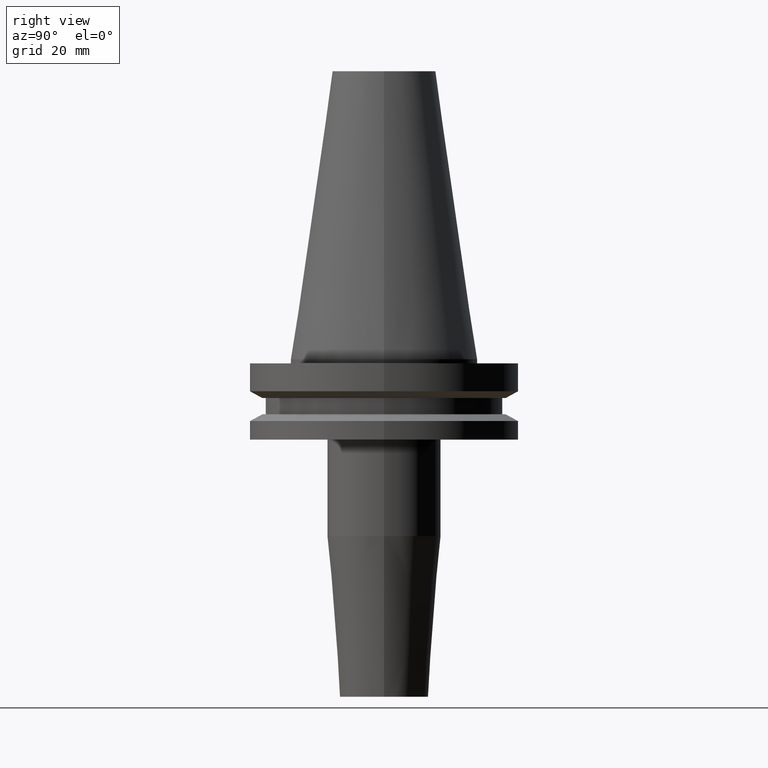
[diagram: clean part render]
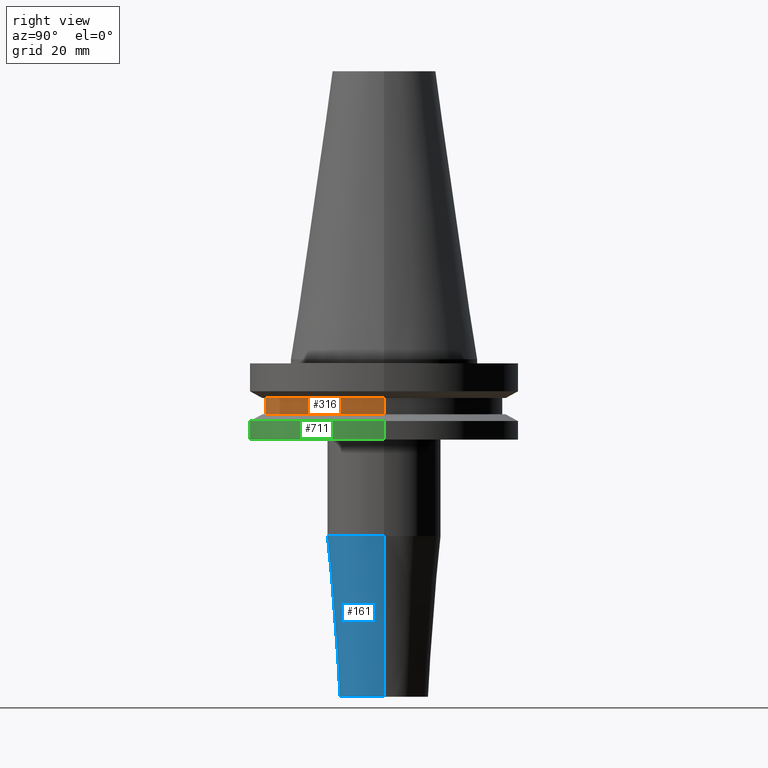
[diagram: same view with three faces highlighted in distinct colors, each labeled with its STEP entity id]
A machine part, right view with three faces highlighted in distinct colors.
Their STEP definitions:

[orange] entity #316 — the highlighted cylindrical surface (partial cylindrical patch) has radius 28.18 mm, axis along (-0, -0, 1).
#25 = EDGE_CURVE ( 'NONE', #659, #332, #46, .T. ) ;
#45 = CARTESIAN_POINT ( 'NONE',  ( 0.000000000000000000, 0.000000000000000000, -9.204999999999991189 ) ) ;
#46 = LINE ( 'NONE', #636, #588 ) ;
#73 = LINE ( 'NONE', #708, #491 ) ;
#89 = CARTESIAN_POINT ( 'NONE',  ( 0.000000000000000000, 0.000000000000000000, 68.25000000000000000 ) ) ;
#150 = DIRECTION ( 'NONE',  ( -0.000000000000000000, -0.000000000000000000, 1.000000000000000000 ) ) ;
#152 = CARTESIAN_POINT ( 'NONE',  ( 0.000000000000000000, 0.000000000000000000, -13.05499999999999794 ) ) ;
#156 = ORIENTED_EDGE ( 'NONE', *, *, #271, .F. ) ;
#216 = DIRECTION ( 'NONE',  ( -0.000000000000000000, -0.000000000000000000, 1.000000000000000000 ) ) ;
#271 = EDGE_CURVE ( 'NONE', #650, #332, #581, .T. ) ;
#273 = DIRECTION ( 'NONE',  ( 1.000000000000000000, 0.000000000000000000, 0.000000000000000000 ) ) ;
#274 = DIRECTION ( 'NONE',  ( -0.000000000000000000, -0.000000000000000000, 1.000000000000000000 ) ) ;
#289 = EDGE_CURVE ( 'NONE', #469, #659, #688, .T. ) ;
#304 = ORIENTED_EDGE ( 'NONE', *, *, #408, .F. ) ;
#316 = ADVANCED_FACE ( 'NONE', ( #758 ), #687, .T. ) ;
#332 = VERTEX_POINT ( 'NONE', #567 ) ;
#375 = CARTESIAN_POINT ( 'NONE',  ( -28.17999999999999972, 3.451054679997241634E-15, -9.204999999999991189 ) ) ;
#380 = CARTESIAN_POINT ( 'NONE',  ( 28.17999999999999972, 0.000000000000000000, -13.05499999999999794 ) ) ;
#383 = DIRECTION ( 'NONE',  ( 1.000000000000000000, 0.000000000000000000, 0.000000000000000000 ) ) ;
#408 = EDGE_CURVE ( 'NONE', #469, #650, #73, .T. ) ;
#469 = VERTEX_POINT ( 'NONE', #655 ) ;
#476 = AXIS2_PLACEMENT_3D ( 'NONE', #45, #583, #383 ) ;
#491 = VECTOR ( 'NONE', #529, 1000.000000000000000 ) ;
#529 = DIRECTION ( 'NONE',  ( -0.000000000000000000, -0.000000000000000000, 1.000000000000000000 ) ) ;
#567 = CARTESIAN_POINT ( 'NONE',  ( 28.17999999999999972, 0.000000000000000000, -9.204999999999991189 ) ) ;
#581 = CIRCLE ( 'NONE', #476, 28.17999999999999972 ) ;
#583 = DIRECTION ( 'NONE',  ( -0.000000000000000000, -0.000000000000000000, 1.000000000000000000 ) ) ;
#588 = VECTOR ( 'NONE', #274, 1000.000000000000000 ) ;
#618 = AXIS2_PLACEMENT_3D ( 'NONE', #152, #216, #273 ) ;
#636 = CARTESIAN_POINT ( 'NONE',  ( 28.17999999999999972, 0.000000000000000000, 68.25000000000000000 ) ) ;
#650 = VERTEX_POINT ( 'NONE', #375 ) ;
#655 = CARTESIAN_POINT ( 'NONE',  ( -28.17999999999999972, 3.451054679997241634E-15, -13.05499999999999794 ) ) ;
#659 = VERTEX_POINT ( 'NONE', #380 ) ;
#687 = CYLINDRICAL_SURFACE ( 'NONE', #731, 28.17999999999999972 ) ;
#688 = CIRCLE ( 'NONE', #618, 28.17999999999999972 ) ;
#699 = DIRECTION ( 'NONE',  ( 1.000000000000000000, 0.000000000000000000, 0.000000000000000000 ) ) ;
#708 = CARTESIAN_POINT ( 'NONE',  ( -28.17999999999999972, 3.451054679997241634E-15, 68.25000000000000000 ) ) ;
#712 = ORIENTED_EDGE ( 'NONE', *, *, #25, .T. ) ;
#731 = AXIS2_PLACEMENT_3D ( 'NONE', #89, #150, #699 ) ;
#750 = EDGE_LOOP ( 'NONE', ( #304, #752, #712, #156 ) ) ;
#752 = ORIENTED_EDGE ( 'NONE', *, *, #289, .T. ) ;
#758 = FACE_OUTER_BOUND ( 'NONE', #750, .T. ) ;

[blue] entity #161 — the highlighted conical surface has half-angle 4.5 deg.
#5 = CIRCLE ( 'NONE', #444, 13.49999999999999467 ) ;
#33 = ORIENTED_EDGE ( 'NONE', *, *, #138, .F. ) ;
#69 = DIRECTION ( 'NONE',  ( 0.07845909572783768549, 0.000000000000000000, 0.9969173337331286300 ) ) ;
#74 = ORIENTED_EDGE ( 'NONE', *, *, #160, .T. ) ;
#76 = DIRECTION ( 'NONE',  ( -0.000000000000000000, -0.000000000000000000, 1.000000000000000000 ) ) ;
#138 = EDGE_CURVE ( 'NONE', #463, #675, #295, .T. ) ;
#160 = EDGE_CURVE ( 'NONE', #320, #377, #738, .T. ) ;
#161 = ADVANCED_FACE ( 'NONE', ( #197 ), #552, .T. ) ;
#164 = DIRECTION ( 'NONE',  ( -0.000000000000000000, -0.000000000000000000, 1.000000000000000000 ) ) ;
#180 = DIRECTION ( 'NONE',  ( 1.000000000000000000, 0.000000000000000000, 0.000000000000000000 ) ) ;
#194 = DIRECTION ( 'NONE',  ( -0.000000000000000000, -0.000000000000000000, 1.000000000000000000 ) ) ;
#197 = FACE_OUTER_BOUND ( 'NONE', #437, .T. ) ;
#247 = DIRECTION ( 'NONE',  ( -0.07845909572783768549, 9.608468044709219864E-18, 0.9969173337331286300 ) ) ;
#253 = CARTESIAN_POINT ( 'NONE',  ( 0.000000000000000000, 0.000000000000000000, -80.00000000000000000 ) ) ;
#255 = CARTESIAN_POINT ( 'NONE',  ( 0.000000000000000000, 0.000000000000000000, -80.00000000000000000 ) ) ;
#286 = CARTESIAN_POINT ( 'NONE',  ( 13.49999999999999467, 0.000000000000000000, -41.88138579147233997 ) ) ;
#295 = LINE ( 'NONE', #535, #639 ) ;
#306 = CARTESIAN_POINT ( 'NONE',  ( -13.49999999999999467, 1.653273178848926275E-15, -41.88138579147233997 ) ) ;
#307 = ORIENTED_EDGE ( 'NONE', *, *, #536, .T. ) ;
#310 = ORIENTED_EDGE ( 'NONE', *, *, #329, .F. ) ;
#320 = VERTEX_POINT ( 'NONE', #560 ) ;
#329 = EDGE_CURVE ( 'NONE', #675, #377, #5, .T. ) ;
#339 = DIRECTION ( 'NONE',  ( 1.000000000000000000, 0.000000000000000000, 0.000000000000000000 ) ) ;
#359 = AXIS2_PLACEMENT_3D ( 'NONE', #253, #194, #180 ) ;
#377 = VERTEX_POINT ( 'NONE', #286 ) ;
#437 = EDGE_LOOP ( 'NONE', ( #33, #307, #74, #310 ) ) ;
#444 = AXIS2_PLACEMENT_3D ( 'NONE', #626, #164, #339 ) ;
#456 = CIRCLE ( 'NONE', #477, 10.49999999999999467 ) ;
#463 = VERTEX_POINT ( 'NONE', #586 ) ;
#477 = AXIS2_PLACEMENT_3D ( 'NONE', #255, #76, #611 ) ;
#535 = CARTESIAN_POINT ( 'NONE',  ( -10.49999999999999467, 1.285879139104720239E-15, -80.00000000000000000 ) ) ;
#536 = EDGE_CURVE ( 'NONE', #463, #320, #456, .T. ) ;
#552 = CONICAL_SURFACE ( 'NONE', #359, 10.49999999999999467, 0.07853981633973755594 ) ;
#560 = CARTESIAN_POINT ( 'NONE',  ( 10.49999999999999467, 0.000000000000000000, -80.00000000000000000 ) ) ;
#586 = CARTESIAN_POINT ( 'NONE',  ( -10.49999999999999467, 1.469576158976823356E-15, -80.00000000000000000 ) ) ;
#611 = DIRECTION ( 'NONE',  ( 1.000000000000000000, 0.000000000000000000, 0.000000000000000000 ) ) ;
#626 = CARTESIAN_POINT ( 'NONE',  ( 0.000000000000000000, 0.000000000000000000, -41.88138579147233997 ) ) ;
#639 = VECTOR ( 'NONE', #247, 999.9999999999998863 ) ;
#675 = VERTEX_POINT ( 'NONE', #306 ) ;
#720 = CARTESIAN_POINT ( 'NONE',  ( 10.49999999999999467, 0.000000000000000000, -80.00000000000000000 ) ) ;
#738 = LINE ( 'NONE', #720, #744 ) ;
#744 = VECTOR ( 'NONE', #69, 999.9999999999998863 ) ;

[green] entity #711 — the highlighted cylindrical surface (partial cylindrical patch) has radius 31.75 mm, axis along (-0, -0, 1).
#51 = ORIENTED_EDGE ( 'NONE', *, *, #204, .T. ) ;
#68 = EDGE_LOOP ( 'NONE', ( #238, #51, #242, #742 ) ) ;
#72 = VECTOR ( 'NONE', #172, 1000.000000000000000 ) ;
#84 = CARTESIAN_POINT ( 'NONE',  ( -31.74999999999999289, 3.888253587292845687E-15, -19.04999999999999716 ) ) ;
#107 = DIRECTION ( 'NONE',  ( 1.000000000000000000, 0.000000000000000000, 0.000000000000000000 ) ) ;
#116 = CIRCLE ( 'NONE', #525, 31.74999999999999289 ) ;
#125 = VERTEX_POINT ( 'NONE', #84 ) ;
#172 = DIRECTION ( 'NONE',  ( -0.000000000000000000, -0.000000000000000000, 1.000000000000000000 ) ) ;
#189 = AXIS2_PLACEMENT_3D ( 'NONE', #577, #519, #107 ) ;
#201 = CARTESIAN_POINT ( 'NONE',  ( 31.74999999999999289, 0.000000000000000000, -19.04999999999999716 ) ) ;
#204 = EDGE_CURVE ( 'NONE', #125, #280, #116, .T. ) ;
#238 = ORIENTED_EDGE ( 'NONE', *, *, #260, .F. ) ;
#240 = EDGE_CURVE ( 'NONE', #272, #700, #538, .T. ) ;
#242 = ORIENTED_EDGE ( 'NONE', *, *, #397, .T. ) ;
#248 = VECTOR ( 'NONE', #582, 1000.000000000000000 ) ;
#260 = EDGE_CURVE ( 'NONE', #125, #272, #680, .T. ) ;
#263 = DIRECTION ( 'NONE',  ( -0.000000000000000000, -0.000000000000000000, 1.000000000000000000 ) ) ;
#272 = VERTEX_POINT ( 'NONE', #500 ) ;
#280 = VERTEX_POINT ( 'NONE', #201 ) ;
#327 = AXIS2_PLACEMENT_3D ( 'NONE', #623, #263, #644 ) ;
#397 = EDGE_CURVE ( 'NONE', #280, #700, #599, .T. ) ;
#398 = FACE_OUTER_BOUND ( 'NONE', #68, .T. ) ;
#419 = CARTESIAN_POINT ( 'NONE',  ( 31.75000000000000000, 0.000000000000000000, 68.25000000000000000 ) ) ;
#451 = CARTESIAN_POINT ( 'NONE',  ( 31.75000000000000000, 0.000000000000000000, -14.65472339340266572 ) ) ;
#462 = CARTESIAN_POINT ( 'NONE',  ( -31.75000000000000000, 3.888253587292846476E-15, 68.25000000000000000 ) ) ;
#482 = CARTESIAN_POINT ( 'NONE',  ( 0.000000000000000000, 0.000000000000000000, -19.04999999999999716 ) ) ;
#500 = CARTESIAN_POINT ( 'NONE',  ( -31.75000000000000000, 3.888253587292846476E-15, -14.65472339340266572 ) ) ;
#519 = DIRECTION ( 'NONE',  ( -0.000000000000000000, -0.000000000000000000, 1.000000000000000000 ) ) ;
#525 = AXIS2_PLACEMENT_3D ( 'NONE', #482, #664, #606 ) ;
#538 = CIRCLE ( 'NONE', #327, 31.75000000000000000 ) ;
#577 = CARTESIAN_POINT ( 'NONE',  ( 0.000000000000000000, 0.000000000000000000, 68.25000000000000000 ) ) ;
#582 = DIRECTION ( 'NONE',  ( -0.000000000000000000, -0.000000000000000000, 1.000000000000000000 ) ) ;
#599 = LINE ( 'NONE', #419, #72 ) ;
#606 = DIRECTION ( 'NONE',  ( 1.000000000000000000, 0.000000000000000000, 0.000000000000000000 ) ) ;
#623 = CARTESIAN_POINT ( 'NONE',  ( 0.000000000000000000, 0.000000000000000000, -14.65472339340266572 ) ) ;
#637 = CYLINDRICAL_SURFACE ( 'NONE', #189, 31.75000000000000000 ) ;
#644 = DIRECTION ( 'NONE',  ( 1.000000000000000000, 0.000000000000000000, 0.000000000000000000 ) ) ;
#664 = DIRECTION ( 'NONE',  ( -0.000000000000000000, -0.000000000000000000, 1.000000000000000000 ) ) ;
#680 = LINE ( 'NONE', #462, #248 ) ;
#700 = VERTEX_POINT ( 'NONE', #451 ) ;
#711 = ADVANCED_FACE ( 'NONE', ( #398 ), #637, .T. ) ;
#742 = ORIENTED_EDGE ( 'NONE', *, *, #240, .F. ) ;